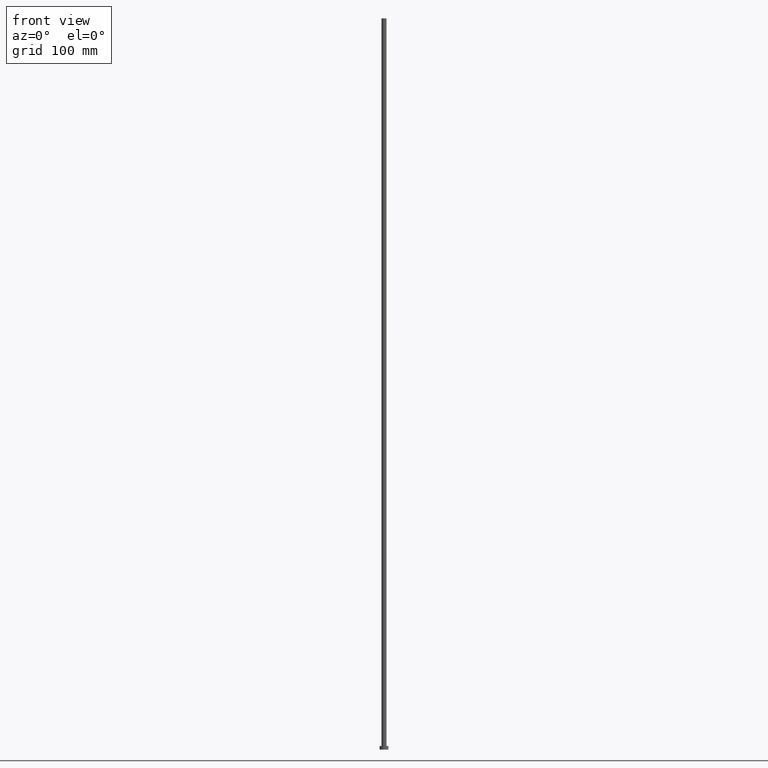
[diagram: clean part render]
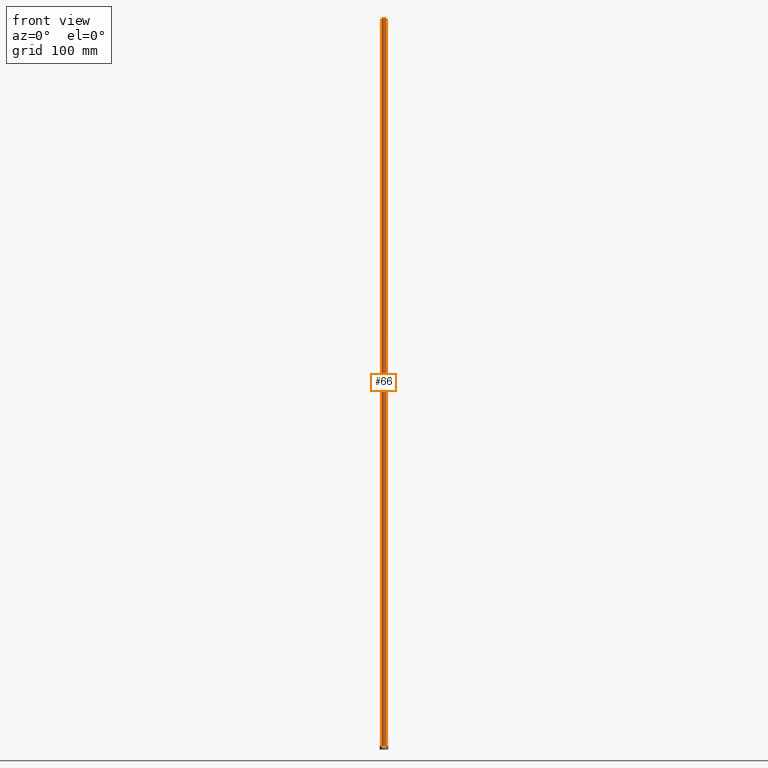
[diagram: same view with one face highlighted and labeled with its STEP entity id]
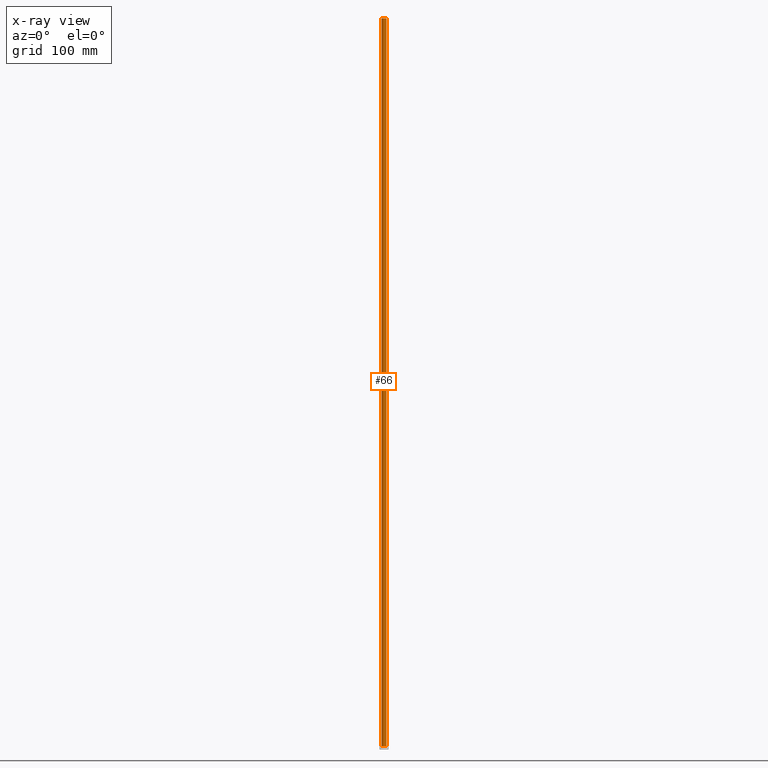
[diagram: x-ray of the same camera — body ghosted, the highlighted face saturated]
A machine part, front view. The second image highlights one B-rep face of the part: STEP entity #66.
The next image is the same camera in x-ray: the body ghosted, the highlighted face saturated — about 0% of this face is hidden behind the body in this view.
In plain terms, the highlighted cylindrical surface (edge-blend (fillet) strip) has radius 3.5 mm, axis along (-0, -0, -1).
Its self-contained STEP definition (entity closure, byte-faithful):
#4 = VECTOR ( 'NONE', #209, 1000.000000000000000 ) ;
#15 = DIRECTION ( 'NONE',  ( 1.000000000000000000, 0.000000000000000000, 0.000000000000000000 ) ) ;
#22 = ORIENTED_EDGE ( 'NONE', *, *, #154, .T. ) ;
#28 = CYLINDRICAL_SURFACE ( 'NONE', #163, 3.500000000000000000 ) ;
#30 = EDGE_CURVE ( 'NONE', #217, #239, #96, .T. ) ;
#34 = AXIS2_PLACEMENT_3D ( 'NONE', #125, #143, #94 ) ;
#41 = ORIENTED_EDGE ( 'NONE', *, *, #122, .F. ) ;
#49 = EDGE_CURVE ( 'NONE', #217, #155, #145, .T. ) ;
#56 = EDGE_LOOP ( 'NONE', ( #41, #190, #111, #22 ) ) ;
#61 = DIRECTION ( 'NONE',  ( -0.000000000000000000, -0.000000000000000000, -1.000000000000000000 ) ) ;
#65 = LINE ( 'NONE', #86, #4 ) ;
#66 = ADVANCED_FACE ( 'NONE', ( #80 ), #28, .T. ) ;
#73 = CARTESIAN_POINT ( 'NONE',  ( 3.500000000000000000, 4.286263797015735609E-16, 1000.000000000000000 ) ) ;
#80 = FACE_OUTER_BOUND ( 'NONE', #56, .T. ) ;
#86 = CARTESIAN_POINT ( 'NONE',  ( 3.500000000000000000, 4.286263797015735609E-16, 1000.000000000000000 ) ) ;
#94 = DIRECTION ( 'NONE',  ( 1.000000000000000000, 0.000000000000000000, 0.000000000000000000 ) ) ;
#96 = LINE ( 'NONE', #243, #180 ) ;
#101 = CARTESIAN_POINT ( 'NONE',  ( 0.000000000000000000, 0.000000000000000000, 1000.000000000000000 ) ) ;
#110 = CARTESIAN_POINT ( 'NONE',  ( 0.000000000000000000, 0.000000000000000000, 5.000000000000000000 ) ) ;
#111 = ORIENTED_EDGE ( 'NONE', *, *, #30, .T. ) ;
#112 = AXIS2_PLACEMENT_3D ( 'NONE', #110, #197, #15 ) ;
#115 = CARTESIAN_POINT ( 'NONE',  ( 3.500000000000000000, 4.286263797015735609E-16, 5.000000000000000000 ) ) ;
#122 = EDGE_CURVE ( 'NONE', #155, #174, #65, .T. ) ;
#125 = CARTESIAN_POINT ( 'NONE',  ( 0.000000000000000000, 0.000000000000000000, 1000.000000000000000 ) ) ;
#143 = DIRECTION ( 'NONE',  ( 0.000000000000000000, 0.000000000000000000, 1.000000000000000000 ) ) ;
#144 = DIRECTION ( 'NONE',  ( -1.000000000000000000, 0.000000000000000000, 0.000000000000000000 ) ) ;
#145 = CIRCLE ( 'NONE', #34, 3.500000000000000000 ) ;
#154 = EDGE_CURVE ( 'NONE', #239, #174, #229, .T. ) ;
#155 = VERTEX_POINT ( 'NONE', #73 ) ;
#163 = AXIS2_PLACEMENT_3D ( 'NONE', #101, #61, #144 ) ;
#174 = VERTEX_POINT ( 'NONE', #115 ) ;
#179 = DIRECTION ( 'NONE',  ( -0.000000000000000000, -0.000000000000000000, -1.000000000000000000 ) ) ;
#180 = VECTOR ( 'NONE', #179, 1000.000000000000000 ) ;
#190 = ORIENTED_EDGE ( 'NONE', *, *, #49, .F. ) ;
#197 = DIRECTION ( 'NONE',  ( 0.000000000000000000, 0.000000000000000000, 1.000000000000000000 ) ) ;
#209 = DIRECTION ( 'NONE',  ( -0.000000000000000000, -0.000000000000000000, -1.000000000000000000 ) ) ;
#212 = CARTESIAN_POINT ( 'NONE',  ( -3.500000000000000000, 0.000000000000000000, 1000.000000000000000 ) ) ;
#216 = CARTESIAN_POINT ( 'NONE',  ( -3.500000000000000000, 0.000000000000000000, 5.000000000000000000 ) ) ;
#217 = VERTEX_POINT ( 'NONE', #212 ) ;
#229 = CIRCLE ( 'NONE', #112, 3.500000000000000000 ) ;
#239 = VERTEX_POINT ( 'NONE', #216 ) ;
#243 = CARTESIAN_POINT ( 'NONE',  ( -3.500000000000000000, 0.000000000000000000, 1000.000000000000000 ) ) ;